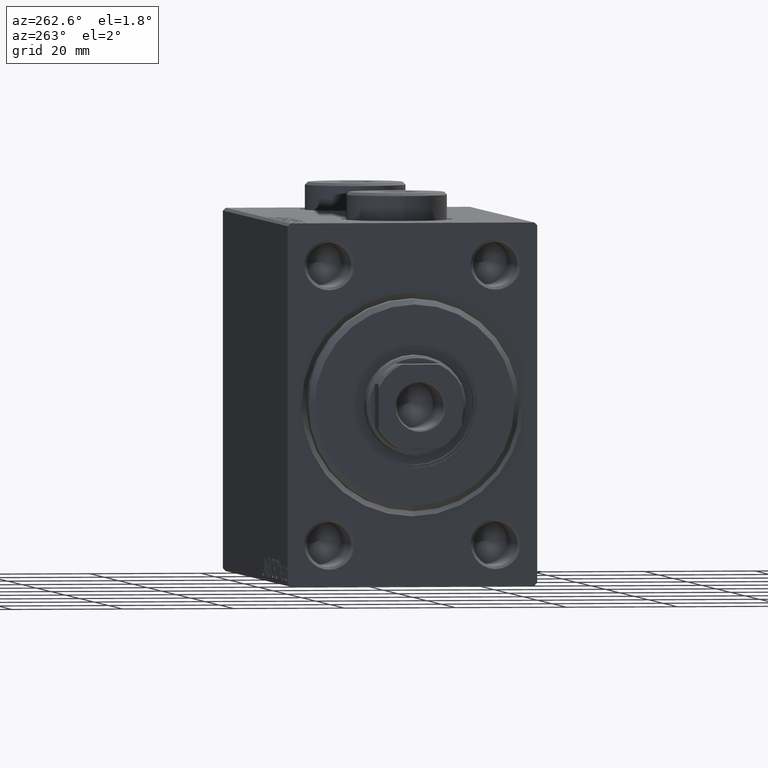
[diagram: clean part render]
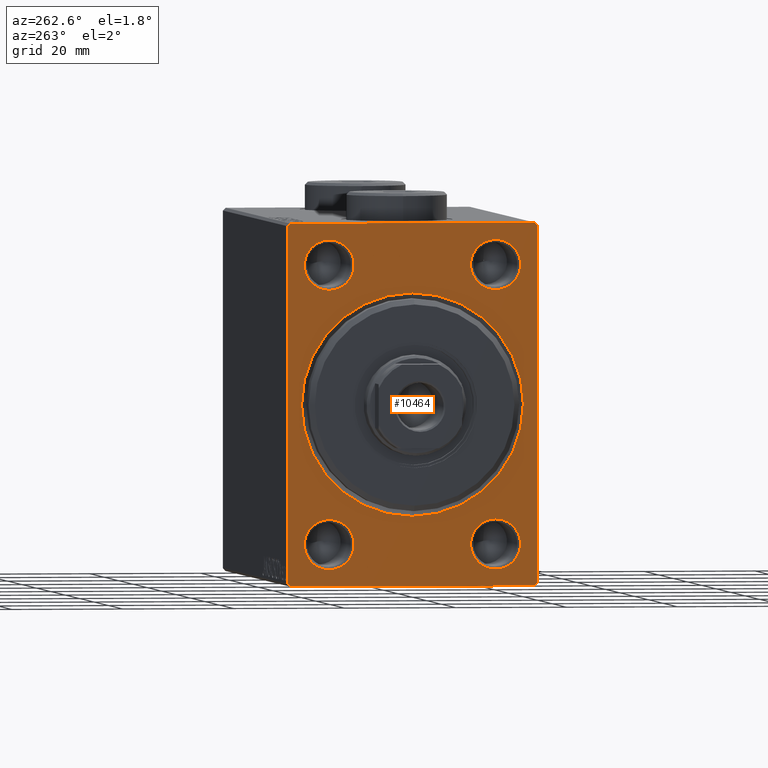
[diagram: same view with one face highlighted and labeled with its STEP entity id]
A machine part, auxiliary view. The second image highlights one B-rep face of the part: STEP entity #10464.
In plain terms, the highlighted planar face has unit normal (1, 0, 0).
Its self-contained STEP definition (entity closure, byte-faithful):
#2 = VECTOR ( 'NONE', #17426, 999.9999999999998863 ) ;
#3 = CIRCLE ( 'NONE', #18438, 4.500000000000031974 ) ;
#29 = CARTESIAN_POINT ( 'NONE',  ( 0.000000000000000000, -15.00000000000000000, 25.00000000000000000 ) ) ;
#132 = CARTESIAN_POINT ( 'NONE',  ( 0.000000000000000000, -15.00000000000000000, -25.00000000000000000 ) ) ;
#649 = ORIENTED_EDGE ( 'NONE', *, *, #41071, .T. ) ;
#819 = DIRECTION ( 'NONE',  ( 0.000000000000000000, 0.000000000000000000, -1.000000000000000000 ) ) ;
#1140 = AXIS2_PLACEMENT_3D ( 'NONE', #4307, #14240, #39123 ) ;
#1839 = VERTEX_POINT ( 'NONE', #2631 ) ;
#2063 = VECTOR ( 'NONE', #22475, 1000.000000000000000 ) ;
#2481 = VERTEX_POINT ( 'NONE', #23283 ) ;
#2631 = CARTESIAN_POINT ( 'NONE',  ( 0.000000000000000000, 15.00000000000000178, -29.50000000000003197 ) ) ;
#2639 = CIRCLE ( 'NONE', #1140, 4.500000000000003553 ) ;
#2961 = CARTESIAN_POINT ( 'NONE',  ( 0.000000000000000000, 22.50000000000000000, 32.49999999999999289 ) ) ;
#3279 = VERTEX_POINT ( 'NONE', #23743 ) ;
#3340 = CARTESIAN_POINT ( 'NONE',  ( 0.000000000000000000, -15.00000000000000000, -25.00000000000000000 ) ) ;
#3403 = ORIENTED_EDGE ( 'NONE', *, *, #25767, .T. ) ;
#3480 = CARTESIAN_POINT ( 'NONE',  ( 0.000000000000000000, -21.99999999999997158, 32.49999999999998579 ) ) ;
#3693 = CARTESIAN_POINT ( 'NONE',  ( 0.000000000000000000, 2.449293598294705330E-15, -19.99999999999998934 ) ) ;
#3721 = CARTESIAN_POINT ( 'NONE',  ( 0.000000000000000000, 0.000000000000000000, 19.99999999999998934 ) ) ;
#4307 = CARTESIAN_POINT ( 'NONE',  ( 0.000000000000000000, 15.00000000000000178, 25.00000000000000000 ) ) ;
#4575 = AXIS2_PLACEMENT_3D ( 'NONE', #16108, #30148, #22558 ) ;
#4762 = VERTEX_POINT ( 'NONE', #3693 ) ;
#4940 = LINE ( 'NONE', #37220, #2063 ) ;
#5351 = EDGE_CURVE ( 'NONE', #4762, #12292, #13793, .T. ) ;
#6163 = EDGE_CURVE ( 'NONE', #10141, #44582, #4940, .T. ) ;
#6201 = LINE ( 'NONE', #2961, #24596 ) ;
#6807 = LINE ( 'NONE', #20886, #2 ) ;
#6861 = ORIENTED_EDGE ( 'NONE', *, *, #37281, .F. ) ;
#7493 = FACE_BOUND ( 'NONE', #16629, .T. ) ;
#7561 = CARTESIAN_POINT ( 'NONE',  ( 0.000000000000000000, 15.00000000000000178, 29.50000000000000711 ) ) ;
#7636 = ORIENTED_EDGE ( 'NONE', *, *, #31604, .T. ) ;
#7910 = VERTEX_POINT ( 'NONE', #14842 ) ;
#8092 = CARTESIAN_POINT ( 'NONE',  ( 0.000000000000000000, 0.000000000000000000, 0.000000000000000000 ) ) ;
#8133 = VERTEX_POINT ( 'NONE', #34635 ) ;
#8193 = EDGE_LOOP ( 'NONE', ( #9185, #42268 ) ) ;
#8205 = CIRCLE ( 'NONE', #10419, 19.99999999999998934 ) ;
#9185 = ORIENTED_EDGE ( 'NONE', *, *, #43909, .T. ) ;
#9515 = EDGE_CURVE ( 'NONE', #21406, #8133, #19854, .T. ) ;
#10141 = VERTEX_POINT ( 'NONE', #42803 ) ;
#10305 = VERTEX_POINT ( 'NONE', #41621 ) ;
#10419 = AXIS2_PLACEMENT_3D ( 'NONE', #8092, #14790, #33204 ) ;
#10464 = ADVANCED_FACE ( 'NONE', ( #42293, #18562, #28920, #11636, #7493, #10727 ), #18114, .F. ) ;
#10727 = FACE_OUTER_BOUND ( 'NONE', #40080, .T. ) ;
#11082 = CIRCLE ( 'NONE', #22865, 4.500000000000003553 ) ;
#11400 = DIRECTION ( 'NONE',  ( 0.000000000000000000, 0.000000000000000000, -1.000000000000000000 ) ) ;
#11636 = FACE_BOUND ( 'NONE', #20007, .T. ) ;
#11661 = EDGE_CURVE ( 'NONE', #42057, #1839, #3, .T. ) ;
#11747 = DIRECTION ( 'NONE',  ( 0.000000000000000000, -0.7071067811865524577, -0.7071067811865426878 ) ) ;
#12034 = DIRECTION ( 'NONE',  ( 1.000000000000000000, 0.000000000000000000, 0.000000000000000000 ) ) ;
#12040 = EDGE_CURVE ( 'NONE', #44023, #7910, #34468, .T. ) ;
#12265 = CARTESIAN_POINT ( 'NONE',  ( 0.000000000000000000, 22.00000000000000000, -32.50000000000000711 ) ) ;
#12292 = VERTEX_POINT ( 'NONE', #3721 ) ;
#12318 = DIRECTION ( 'NONE',  ( 0.000000000000000000, 0.000000000000000000, -1.000000000000000000 ) ) ;
#12344 = CARTESIAN_POINT ( 'NONE',  ( 0.000000000000000000, 22.50000000000000711, -32.00000000000002132 ) ) ;
#13256 = LINE ( 'NONE', #30774, #14270 ) ;
#13793 = CIRCLE ( 'NONE', #26316, 19.99999999999998934 ) ;
#13794 = CARTESIAN_POINT ( 'NONE',  ( 0.000000000000000000, -22.49999999999999289, -32.50000000000000711 ) ) ;
#13947 = DIRECTION ( 'NONE',  ( 1.000000000000000000, 0.000000000000000000, 0.000000000000000000 ) ) ;
#14113 = DIRECTION ( 'NONE',  ( 0.000000000000000000, 0.000000000000000000, -1.000000000000000000 ) ) ;
#14240 = DIRECTION ( 'NONE',  ( 1.000000000000000000, 0.000000000000000000, 0.000000000000000000 ) ) ;
#14270 = VECTOR ( 'NONE', #19501, 1000.000000000000000 ) ;
#14415 = DIRECTION ( 'NONE',  ( 1.000000000000000000, 0.000000000000000000, 0.000000000000000000 ) ) ;
#14716 = AXIS2_PLACEMENT_3D ( 'NONE', #22014, #14415, #24794 ) ;
#14790 = DIRECTION ( 'NONE',  ( 1.000000000000000000, 0.000000000000000000, 0.000000000000000000 ) ) ;
#14842 = CARTESIAN_POINT ( 'NONE',  ( 0.000000000000000000, 22.50000000000000000, 31.99999999999999289 ) ) ;
#15820 = CARTESIAN_POINT ( 'NONE',  ( 0.000000000000000000, -15.00000000000000000, 25.00000000000000000 ) ) ;
#15850 = DIRECTION ( 'NONE',  ( 1.000000000000000000, 0.000000000000000000, 0.000000000000000000 ) ) ;
#16108 = CARTESIAN_POINT ( 'NONE',  ( 0.000000000000000000, 15.00000000000000178, 25.00000000000000000 ) ) ;
#16187 = DIRECTION ( 'NONE',  ( 0.000000000000000000, 0.000000000000000000, -1.000000000000000000 ) ) ;
#16629 = EDGE_LOOP ( 'NONE', ( #17995, #649 ) ) ;
#17190 = EDGE_CURVE ( 'NONE', #45542, #39171, #6807, .T. ) ;
#17206 = EDGE_CURVE ( 'NONE', #10305, #2481, #11082, .T. ) ;
#17426 = DIRECTION ( 'NONE',  ( -0.000000000000000000, 0.7071067811865525687, 0.7071067811865425767 ) ) ;
#17492 = CARTESIAN_POINT ( 'NONE',  ( 0.000000000000000000, -22.49999999999999289, 31.99999999999998579 ) ) ;
#17995 = ORIENTED_EDGE ( 'NONE', *, *, #11661, .T. ) ;
#18114 = PLANE ( 'NONE',  #14716 ) ;
#18438 = AXIS2_PLACEMENT_3D ( 'NONE', #36927, #12034, #16187 ) ;
#18562 = FACE_BOUND ( 'NONE', #8193, .T. ) ;
#18729 = ORIENTED_EDGE ( 'NONE', *, *, #44021, .F. ) ;
#19130 = EDGE_CURVE ( 'NONE', #12292, #4762, #8205, .T. ) ;
#19501 = DIRECTION ( 'NONE',  ( -0.000000000000000000, 0.7071067811865378028, -0.7071067811865573427 ) ) ;
#19508 = CARTESIAN_POINT ( 'NONE',  ( 0.000000000000000000, -22.49999999999999289, 32.49999999999998579 ) ) ;
#19854 = CIRCLE ( 'NONE', #33063, 4.500000000000003553 ) ;
#20007 = EDGE_LOOP ( 'NONE', ( #7636, #32974 ) ) ;
#20194 = CARTESIAN_POINT ( 'NONE',  ( 0.000000000000000000, 22.50000000000000711, -32.50000000000000711 ) ) ;
#20283 = DIRECTION ( 'NONE',  ( 0.000000000000000000, -1.000000000000000000, -1.541976423090495633E-16 ) ) ;
#20886 = CARTESIAN_POINT ( 'NONE',  ( 0.000000000000000000, -22.49999999999999289, 31.99999999999998579 ) ) ;
#21406 = VERTEX_POINT ( 'NONE', #42139 ) ;
#21910 = EDGE_LOOP ( 'NONE', ( #31639, #26371 ) ) ;
#22014 = CARTESIAN_POINT ( 'NONE',  ( 0.000000000000000000, 0.000000000000000000, 0.000000000000000000 ) ) ;
#22443 = AXIS2_PLACEMENT_3D ( 'NONE', #132, #41874, #31514 ) ;
#22475 = DIRECTION ( 'NONE',  ( -0.000000000000000000, -0.7071067811865328068, 0.7071067811865622277 ) ) ;
#22558 = DIRECTION ( 'NONE',  ( 0.000000000000000000, 0.000000000000000000, -1.000000000000000000 ) ) ;
#22865 = AXIS2_PLACEMENT_3D ( 'NONE', #3340, #13947, #11400 ) ;
#23283 = CARTESIAN_POINT ( 'NONE',  ( 0.000000000000000000, -15.00000000000000000, -20.49999999999999645 ) ) ;
#23743 = CARTESIAN_POINT ( 'NONE',  ( 0.000000000000000000, 22.00000000000001421, 32.49999999999999289 ) ) ;
#24246 = EDGE_CURVE ( 'NONE', #44023, #38028, #44212, .T. ) ;
#24359 = EDGE_CURVE ( 'NONE', #10141, #38028, #26943, .T. ) ;
#24533 = VECTOR ( 'NONE', #11747, 1000.000000000000000 ) ;
#24596 = VECTOR ( 'NONE', #20283, 1000.000000000000000 ) ;
#24617 = ORIENTED_EDGE ( 'NONE', *, *, #24359, .F. ) ;
#24794 = DIRECTION ( 'NONE',  ( 0.000000000000000000, 0.000000000000000000, -1.000000000000000000 ) ) ;
#25000 = CARTESIAN_POINT ( 'NONE',  ( 0.000000000000000000, 15.00000000000000178, 20.49999999999999645 ) ) ;
#25767 = EDGE_CURVE ( 'NONE', #3279, #7910, #13256, .T. ) ;
#25946 = LINE ( 'NONE', #19508, #27622 ) ;
#25984 = CARTESIAN_POINT ( 'NONE',  ( 0.000000000000000000, 15.00000000000000178, -25.00000000000000000 ) ) ;
#26025 = CARTESIAN_POINT ( 'NONE',  ( 0.000000000000000000, 22.50000000000000711, -32.00000000000002132 ) ) ;
#26260 = EDGE_CURVE ( 'NONE', #27746, #40391, #2639, .T. ) ;
#26316 = AXIS2_PLACEMENT_3D ( 'NONE', #29838, #40430, #12318 ) ;
#26371 = ORIENTED_EDGE ( 'NONE', *, *, #28150, .T. ) ;
#26943 = LINE ( 'NONE', #13794, #41449 ) ;
#27170 = DIRECTION ( 'NONE',  ( 0.000000000000000000, 1.000000000000000000, 0.000000000000000000 ) ) ;
#27622 = VECTOR ( 'NONE', #819, 1000.000000000000000 ) ;
#27746 = VERTEX_POINT ( 'NONE', #25000 ) ;
#28150 = EDGE_CURVE ( 'NONE', #8133, #21406, #31332, .T. ) ;
#28920 = FACE_BOUND ( 'NONE', #21910, .T. ) ;
#29650 = DIRECTION ( 'NONE',  ( 1.000000000000000000, 0.000000000000000000, 0.000000000000000000 ) ) ;
#29752 = CIRCLE ( 'NONE', #39331, 4.500000000000031974 ) ;
#29838 = CARTESIAN_POINT ( 'NONE',  ( 0.000000000000000000, 0.000000000000000000, 0.000000000000000000 ) ) ;
#30148 = DIRECTION ( 'NONE',  ( 1.000000000000000000, 0.000000000000000000, 0.000000000000000000 ) ) ;
#30774 = CARTESIAN_POINT ( 'NONE',  ( 0.000000000000000000, 22.00000000000001421, 32.49999999999999289 ) ) ;
#30901 = EDGE_LOOP ( 'NONE', ( #44198, #36772 ) ) ;
#31332 = CIRCLE ( 'NONE', #35012, 4.500000000000003553 ) ;
#31392 = ORIENTED_EDGE ( 'NONE', *, *, #6163, .T. ) ;
#31514 = DIRECTION ( 'NONE',  ( 0.000000000000000000, 0.000000000000000000, -1.000000000000000000 ) ) ;
#31604 = EDGE_CURVE ( 'NONE', #40391, #27746, #44317, .T. ) ;
#31639 = ORIENTED_EDGE ( 'NONE', *, *, #9515, .T. ) ;
#32974 = ORIENTED_EDGE ( 'NONE', *, *, #26260, .T. ) ;
#33063 = AXIS2_PLACEMENT_3D ( 'NONE', #15820, #29650, #40699 ) ;
#33204 = DIRECTION ( 'NONE',  ( 0.000000000000000000, 0.000000000000000000, -1.000000000000000000 ) ) ;
#34468 = LINE ( 'NONE', #20194, #37572 ) ;
#34635 = CARTESIAN_POINT ( 'NONE',  ( 0.000000000000000000, -15.00000000000000000, 20.49999999999999645 ) ) ;
#35012 = AXIS2_PLACEMENT_3D ( 'NONE', #29, #39002, #14113 ) ;
#36772 = ORIENTED_EDGE ( 'NONE', *, *, #5351, .T. ) ;
#36927 = CARTESIAN_POINT ( 'NONE',  ( 0.000000000000000000, 15.00000000000000178, -25.00000000000000000 ) ) ;
#37220 = CARTESIAN_POINT ( 'NONE',  ( 0.000000000000000000, -22.00000000000000711, -32.50000000000000711 ) ) ;
#37281 = EDGE_CURVE ( 'NONE', #3279, #39171, #6201, .T. ) ;
#37572 = VECTOR ( 'NONE', #37686, 1000.000000000000000 ) ;
#37686 = DIRECTION ( 'NONE',  ( 0.000000000000000000, -1.067522139062650425E-16, 1.000000000000000000 ) ) ;
#38028 = VERTEX_POINT ( 'NONE', #12265 ) ;
#38815 = ORIENTED_EDGE ( 'NONE', *, *, #24246, .T. ) ;
#39002 = DIRECTION ( 'NONE',  ( 1.000000000000000000, 0.000000000000000000, 0.000000000000000000 ) ) ;
#39112 = CARTESIAN_POINT ( 'NONE',  ( 0.000000000000000000, -22.49999999999999289, -32.00000000000000000 ) ) ;
#39123 = DIRECTION ( 'NONE',  ( 0.000000000000000000, 0.000000000000000000, -1.000000000000000000 ) ) ;
#39171 = VERTEX_POINT ( 'NONE', #3480 ) ;
#39331 = AXIS2_PLACEMENT_3D ( 'NONE', #25984, #15850, #40726 ) ;
#40080 = EDGE_LOOP ( 'NONE', ( #18729, #43243, #6861, #3403, #40520, #38815, #24617, #31392 ) ) ;
#40391 = VERTEX_POINT ( 'NONE', #7561 ) ;
#40402 = CARTESIAN_POINT ( 'NONE',  ( 0.000000000000000000, 15.00000000000000178, -20.49999999999996803 ) ) ;
#40430 = DIRECTION ( 'NONE',  ( 1.000000000000000000, 0.000000000000000000, 0.000000000000000000 ) ) ;
#40520 = ORIENTED_EDGE ( 'NONE', *, *, #12040, .F. ) ;
#40699 = DIRECTION ( 'NONE',  ( 0.000000000000000000, 0.000000000000000000, -1.000000000000000000 ) ) ;
#40726 = DIRECTION ( 'NONE',  ( 0.000000000000000000, 0.000000000000000000, -1.000000000000000000 ) ) ;
#41071 = EDGE_CURVE ( 'NONE', #1839, #42057, #29752, .T. ) ;
#41449 = VECTOR ( 'NONE', #27170, 1000.000000000000000 ) ;
#41621 = CARTESIAN_POINT ( 'NONE',  ( 0.000000000000000000, -15.00000000000000000, -29.50000000000000711 ) ) ;
#41874 = DIRECTION ( 'NONE',  ( 1.000000000000000000, 0.000000000000000000, 0.000000000000000000 ) ) ;
#42057 = VERTEX_POINT ( 'NONE', #40402 ) ;
#42139 = CARTESIAN_POINT ( 'NONE',  ( 0.000000000000000000, -15.00000000000000000, 29.50000000000000711 ) ) ;
#42268 = ORIENTED_EDGE ( 'NONE', *, *, #17206, .T. ) ;
#42293 = FACE_BOUND ( 'NONE', #30901, .T. ) ;
#42314 = CIRCLE ( 'NONE', #22443, 4.500000000000003553 ) ;
#42803 = CARTESIAN_POINT ( 'NONE',  ( 0.000000000000000000, -22.00000000000000711, -32.50000000000000711 ) ) ;
#43243 = ORIENTED_EDGE ( 'NONE', *, *, #17190, .T. ) ;
#43909 = EDGE_CURVE ( 'NONE', #2481, #10305, #42314, .T. ) ;
#44021 = EDGE_CURVE ( 'NONE', #45542, #44582, #25946, .T. ) ;
#44023 = VERTEX_POINT ( 'NONE', #12344 ) ;
#44198 = ORIENTED_EDGE ( 'NONE', *, *, #19130, .T. ) ;
#44212 = LINE ( 'NONE', #26025, #24533 ) ;
#44317 = CIRCLE ( 'NONE', #4575, 4.500000000000003553 ) ;
#44582 = VERTEX_POINT ( 'NONE', #39112 ) ;
#45542 = VERTEX_POINT ( 'NONE', #17492 ) ;